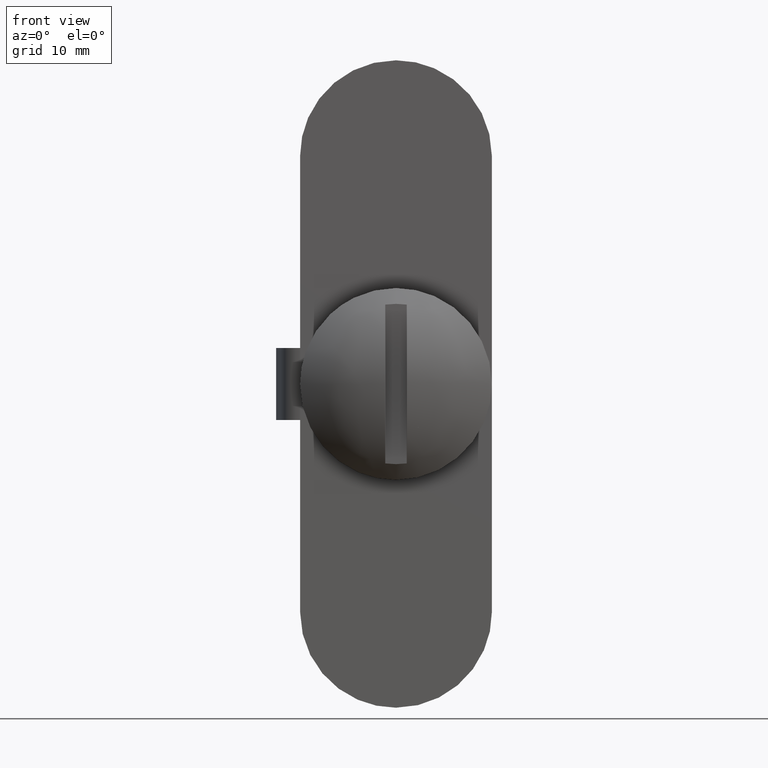
[diagram: clean part render]
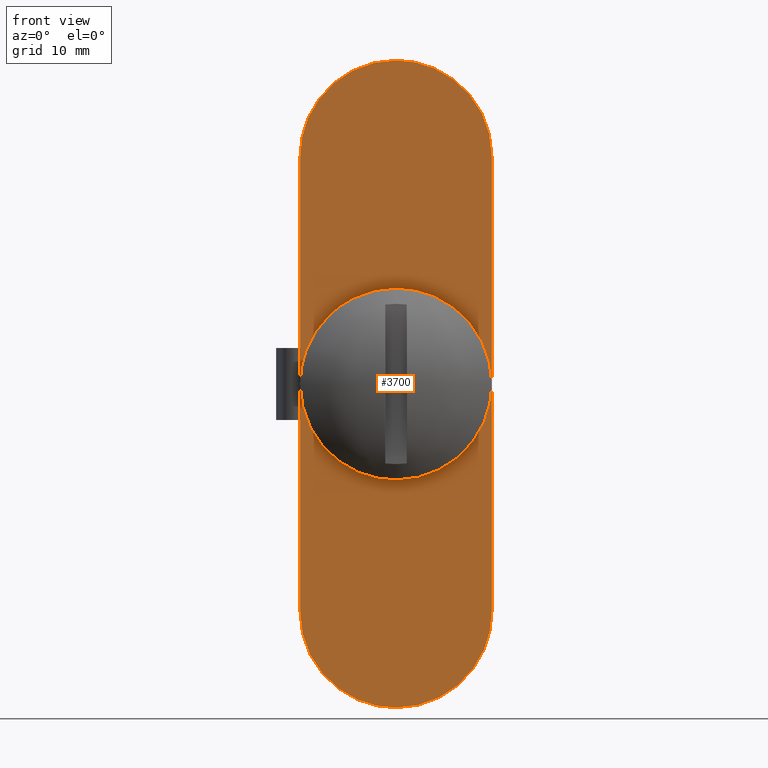
[diagram: same view with one face highlighted and labeled with its STEP entity id]
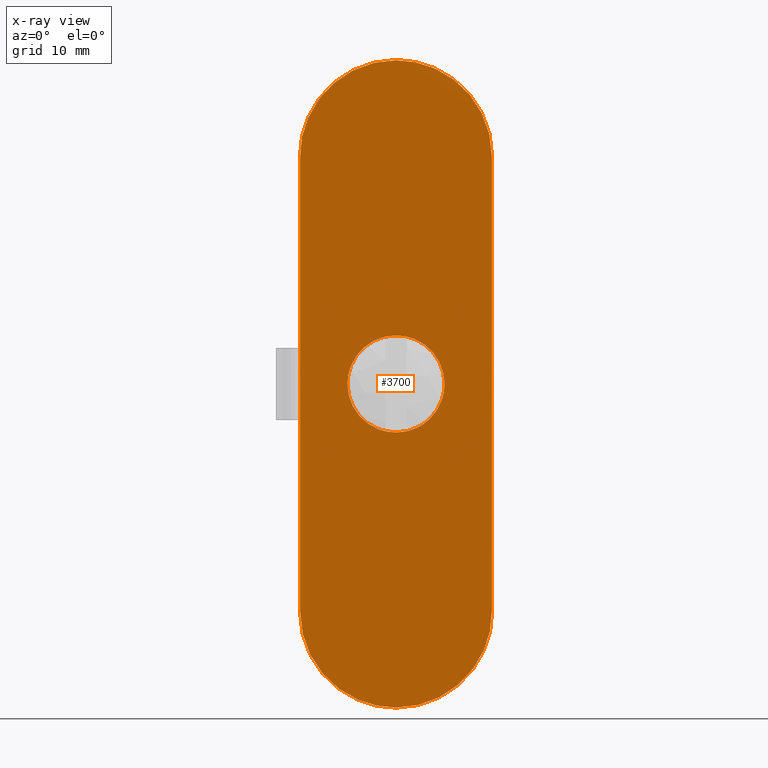
[diagram: x-ray of the same camera — body ghosted, the highlighted face saturated]
A machine part, front view. The second image highlights one B-rep face of the part: STEP entity #3700.
The next image is the same camera in x-ray: the body ghosted, the highlighted face saturated — about 0% of this face is hidden behind the body in this view.
In plain terms, the highlighted face is a freeform B-spline surface patch.
Its self-contained STEP definition (entity closure, byte-faithful):
#3223=CARTESIAN_POINT('',(3.092400469154631,-1.599991000001859,2.615255294156009));
#3224=VERTEX_POINT('',#3223);
#3225=CARTESIAN_POINT('',(0.0,-1.599990999999965,4.050000000000000));
#3226=VERTEX_POINT('',#3225);
#3227=CARTESIAN_POINT('',(3.092400469154631,-1.599991000001859,2.615255294156009));
#3228=CARTESIAN_POINT('',(2.820376977691375,-1.599991000001693,2.937277410438692));
#3229=CARTESIAN_POINT('',(2.300836514893741,-1.599991000001375,3.385744414825498));
#3230=CARTESIAN_POINT('',(1.493138806899813,-1.599991000000878,3.787413040616861));
#3231=CARTESIAN_POINT('',(0.769694009481361,-1.599991000000438,3.999427392969075));
#3232=CARTESIAN_POINT('',(0.274895964038809,-1.599991000000127,4.050034765647252));
#3233=CARTESIAN_POINT('',(0.0,-1.599990999999965,4.050000000000000));
#3234=B_SPLINE_CURVE_WITH_KNOTS('',3,(#3227,#3228,#3229,#3230,#3231,#3232,#3233),.UNSPECIFIED.,.F.,.U.,(4,1,1,1,4),(0.000000015928992,1.264529401427014,2.034226246631516,2.693985453096188,3.518673681886411),.UNSPECIFIED.);
#3235=EDGE_CURVE('',#3224,#3226,#3234,.T.);
#3237=CARTESIAN_POINT('',(-4.049999999999974,-1.599990999999965,-0.000000458331463));
#3238=VERTEX_POINT('',#3237);
#3239=CARTESIAN_POINT('',(0.0,-1.599990999999965,4.050000000000000));
#3240=CARTESIAN_POINT('',(-0.381054484313349,-1.599990999999965,4.050140602619687));
#3241=CARTESIAN_POINT('',(-1.010515882282830,-1.599990999999965,3.960478360670183));
#3242=CARTESIAN_POINT('',(-1.800263474168595,-1.599990999999965,3.650198816271311));
#3243=CARTESIAN_POINT('',(-2.453598175635486,-1.599990999999961,3.253170430365296));
#3244=CARTESIAN_POINT('',(-3.046438682187678,-1.599990999999966,2.715894467325104));
#3245=CARTESIAN_POINT('',(-3.501115867815219,-1.599990999999963,2.078566816770383));
#3246=CARTESIAN_POINT('',(-3.827842104405860,-1.599990999999986,1.387769674100269));
#3247=CARTESIAN_POINT('',(-4.010294287966048,-1.599990999999902,0.712385562720853));
#3248=CARTESIAN_POINT('',(-4.050008687073341,-1.599991000000036,0.215367743600465));
#3249=CARTESIAN_POINT('',(-4.049999999999974,-1.599990999999965,-0.000000458331463));
#3250=B_SPLINE_CURVE_WITH_KNOTS('',3,(#3239,#3240,#3241,#3242,#3243,#3244,#3245,#3246,#3247,#3248,#3249),.UNSPECIFIED.,.F.,.U.,(4,1,1,1,1,1,1,1,4),(0.000000055227183,1.143122650493126,1.888650764688554,2.534773102149365,3.429381718679102,4.274308838590464,4.870726688445481,5.715652830963844,6.361765298970928),.UNSPECIFIED.);
#3251=EDGE_CURVE('',#3226,#3238,#3250,.T.);
#3253=CARTESIAN_POINT('',(0.0,-1.599990999999965,-4.050000000000000));
#3254=VERTEX_POINT('',#3253);
#3255=CARTESIAN_POINT('',(-4.049999999999974,-1.599990999999965,-0.000000458331463));
#3256=CARTESIAN_POINT('',(-4.050201243229171,-1.599990999999974,-0.414195219986316));
#3257=CARTESIAN_POINT('',(-3.937173920950953,-1.599990999999945,-1.143030930930646));
#3258=CARTESIAN_POINT('',(-3.560234583896198,-1.599990999999985,-1.979403110114198));
#3259=CARTESIAN_POINT('',(-3.143165495486218,-1.599990999999945,-2.579282978451702));
#3260=CARTESIAN_POINT('',(-2.661637303840499,-1.599990999999951,-3.085117777227258));
#3261=CARTESIAN_POINT('',(-2.078568684010875,-1.599991000000042,-3.501118182822238));
#3262=CARTESIAN_POINT('',(-1.432818437939988,-1.599990999999898,-3.806521129870342));
#3263=CARTESIAN_POINT('',(-0.762065598154865,-1.599990999999986,-4.001024033879598));
#3264=CARTESIAN_POINT('',(-0.265070882309666,-1.599990999999965,-4.050037229062435));
#3265=CARTESIAN_POINT('',(0.0,-1.599990999999965,-4.050000000000000));
#3266=B_SPLINE_CURVE_WITH_KNOTS('',3,(#3255,#3256,#3257,#3258,#3259,#3260,#3261,#3262,#3263,#3264,#3265),.UNSPECIFIED.,.F.,.U.,(4,1,1,1,1,1,1,1,4),(0.000000055387317,1.242531855871150,2.186866573110421,2.733573998402191,3.429381440726923,4.274308491726776,4.870726292973097,5.566556277256678,6.361764782321302),.UNSPECIFIED.);
#3267=EDGE_CURVE('',#3238,#3254,#3266,.T.);
#3269=CARTESIAN_POINT('',(2.787835918983155,-1.599990999997954,-2.937766151683632));
#3270=VERTEX_POINT('',#3269);
#3271=CARTESIAN_POINT('',(0.0,-1.599990999999965,-4.050000000000000));
#3272=CARTESIAN_POINT('',(0.272254321299276,-1.599990999999766,-4.050041422317981));
#3273=CARTESIAN_POINT('',(0.736667426263353,-1.599990999999435,-4.002980208834696));
#3274=CARTESIAN_POINT('',(1.416976343417097,-1.599990999998945,-3.812625169096760));
#3275=CARTESIAN_POINT('',(2.102919850558829,-1.599990999998443,-3.495560729496080));
#3276=CARTESIAN_POINT('',(2.555550301668501,-1.599990999998125,-3.158303154968257));
#3277=CARTESIAN_POINT('',(2.787835918983155,-1.599990999997954,-2.937766151683632));
#3278=B_SPLINE_CURVE_WITH_KNOTS('',3,(#3271,#3272,#3273,#3274,#3275,#3276,#3277),.UNSPECIFIED.,.F.,.U.,(4,1,1,1,4),(0.000000013875821,0.816757953015864,1.393299582913002,2.113960479790959,3.074851748193050),.UNSPECIFIED.);
#3279=EDGE_CURVE('',#3254,#3270,#3278,.T.);
#3367=CARTESIAN_POINT('',(4.049999999999973,-1.599990999999965,0.000000458331472));
#3368=VERTEX_POINT('',#3367);
#3369=CARTESIAN_POINT('',(4.049999999999973,-1.599990999999965,0.000000458331472));
#3370=CARTESIAN_POINT('',(4.050147345321640,-1.599991000000244,0.385021680494588));
#3371=CARTESIAN_POINT('',(3.962745837365865,-1.599991000000690,0.992037114315919));
#3372=CARTESIAN_POINT('',(3.621113157875833,-1.599991000001318,1.879469827514581));
#3373=CARTESIAN_POINT('',(3.312407704599532,-1.599991000001674,2.355261533687516));
#3374=CARTESIAN_POINT('',(3.092400469154631,-1.599991000001859,2.615255294156009));
#3375=B_SPLINE_CURVE_WITH_KNOTS('',3,(#3369,#3370,#3371,#3372,#3373,#3374),.UNSPECIFIED.,.F.,.U.,(4,1,1,4),(0.000000012530482,1.155009485333611,1.821353007942206,2.843092339355573),.UNSPECIFIED.);
#3376=EDGE_CURVE('',#3368,#3224,#3375,.T.);
#3401=CARTESIAN_POINT('',(2.787835918983155,-1.599990999997954,-2.937766151683632));
#3402=CARTESIAN_POINT('',(3.011403582672485,-1.599990999998101,-2.725693667472977));
#3403=CARTESIAN_POINT('',(3.398666969683116,-1.599990999998413,-2.263382151183006));
#3404=CARTESIAN_POINT('',(3.761295607858146,-1.599990999998897,-1.559207491373230));
#3405=CARTESIAN_POINT('',(3.993044856083322,-1.599990999999419,-0.804578728298740));
#3406=CARTESIAN_POINT('',(4.050066773174976,-1.599990999999753,-0.308152803475064));
#3407=CARTESIAN_POINT('',(4.049999999999973,-1.599990999999965,0.000000458331472));
#3408=B_SPLINE_CURVE_WITH_KNOTS('',3,(#3401,#3402,#3403,#3404,#3405,#3406,#3407),.UNSPECIFIED.,.F.,.U.,(4,1,1,1,4),(0.000000016472933,0.924444961002549,1.797521033919546,2.362468849384825,3.286913793914511),.UNSPECIFIED.);
#3409=EDGE_CURVE('',#3270,#3368,#3408,.T.);
#3428=CARTESIAN_POINT('',(-8.0,-1.600004125000085,3.0));
#3429=VERTEX_POINT('',#3428);
#3492=CARTESIAN_POINT('',(-8.0,-1.600004125000085,-3.0));
#3493=VERTEX_POINT('',#3492);
#3535=CARTESIAN_POINT('',(-8.0,-1.600004125000085,3.0));
#3536=CARTESIAN_POINT('',(-8.0,-1.600004125000085,-3.0));
#3537=QUASI_UNIFORM_CURVE('',1,(#3535,#3536),.UNSPECIFIED.,.F.,.U.);
#3538=EDGE_CURVE('',#3429,#3493,#3537,.T.);
#3591=CARTESIAN_POINT('',(-8.799199968988896,-1.599991000000000,29.697299895337490));
#3592=CARTESIAN_POINT('',(8.799200398142338,-1.599991000000000,29.697299895337490));
#3593=CARTESIAN_POINT('',(-8.799199968988896,-1.599991000000000,-29.697301343730359));
#3594=CARTESIAN_POINT('',(8.799200398142338,-1.599991000000000,-29.697301343730359));
#3595=B_SPLINE_SURFACE_WITH_KNOTS('',1,1,((#3591,#3593),(#3592,#3594)),.UNSPECIFIED.,.F.,.F.,.U.,(2,2),(2,2),(0.0,17.598400367131230),(0.0,59.394601239067860),.UNSPECIFIED.);
#3596=CARTESIAN_POINT('',(8.0,-1.599990999999965,19.0));
#3597=VERTEX_POINT('',#3596);
#3598=CARTESIAN_POINT('',(8.0,-1.599990999999965,-19.0));
#3599=VERTEX_POINT('',#3598);
#3600=CARTESIAN_POINT('',(8.0,-1.599990999999965,19.0));
#3601=CARTESIAN_POINT('',(8.0,-1.599990999999965,-19.0));
#3602=QUASI_UNIFORM_CURVE('',1,(#3600,#3601),.UNSPECIFIED.,.F.,.U.);
#3603=EDGE_CURVE('',#3597,#3599,#3602,.T.);
#3604=ORIENTED_EDGE('',*,*,#3603,.F.);
#3605=CARTESIAN_POINT('',(-0.000000671420413,-1.599990999999965,26.999999999999979));
#3606=VERTEX_POINT('',#3605);
#3607=CARTESIAN_POINT('',(8.0,-1.599990999999965,19.0));
#3608=CARTESIAN_POINT('',(8.000055658176320,-1.599990999999967,19.523601726682081));
#3609=CARTESIAN_POINT('',(7.900058436080794,-1.599990999999963,20.538051594862448));
#3610=CARTESIAN_POINT('',(7.521515978707759,-1.599990999999972,21.814067541485230));
#3611=CARTESIAN_POINT('',(6.957567482298716,-1.599990999999964,23.015969337826039));
#3612=CARTESIAN_POINT('',(6.257013327467415,-1.599990999999957,24.050641715864302));
#3613=CARTESIAN_POINT('',(5.308734373837774,-1.599990999999986,25.028422618844541));
#3614=CARTESIAN_POINT('',(4.324430070476393,-1.599990999999913,25.767838439556130));
#3615=CARTESIAN_POINT('',(3.210262216620889,-1.599991000000043,26.363364711971709));
#3616=CARTESIAN_POINT('',(1.783427558124979,-1.599990999999904,26.859192141998982));
#3617=CARTESIAN_POINT('',(0.670875504879247,-1.599990999999988,27.000181070990550));
#3618=CARTESIAN_POINT('',(-0.000000671420413,-1.599990999999965,26.999999999999979));
#3619=B_SPLINE_CURVE_WITH_KNOTS('',3,(#3607,#3608,#3609,#3610,#3611,#3612,#3613,#3614,#3615,#3616,#3617,#3618),.UNSPECIFIED.,.F.,.U.,(4,1,1,1,1,1,1,1,1,4),(0.000000037951718,1.570796537303250,3.043422620387393,3.976088266977515,5.546892700908940,6.774049362718611,8.050335254018872,9.228443648545097,10.553814228072291,12.566390705773090),.UNSPECIFIED.);
#3620=EDGE_CURVE('',#3597,#3606,#3619,.T.);
#3621=ORIENTED_EDGE('',*,*,#3620,.T.);
#3622=CARTESIAN_POINT('',(-8.0,-1.599990999999965,19.0));
#3623=VERTEX_POINT('',#3622);
#3624=CARTESIAN_POINT('',(-0.000000671420413,-1.599990999999965,26.999999999999979));
#3625=CARTESIAN_POINT('',(-0.409058530334494,-1.599990999999967,27.000021492303130));
#3626=CARTESIAN_POINT('',(-1.128997142312720,-1.599990999999961,26.944659344639899));
#3627=CARTESIAN_POINT('',(-2.218660525742400,-1.599990999999967,26.710486490052840));
#3628=CARTESIAN_POINT('',(-3.145530879441106,-1.599990999999970,26.378850672017400));
#3629=CARTESIAN_POINT('',(-4.095356863511993,-1.599990999999963,25.897084283627049));
#3630=CARTESIAN_POINT('',(-4.883322783046102,-1.599990999999969,25.363563316041908));
#3631=CARTESIAN_POINT('',(-5.646387689577706,-1.599990999999961,24.692976438119072));
#3632=CARTESIAN_POINT('',(-6.249944118269243,-1.599990999999970,24.022936347426349));
#3633=CARTESIAN_POINT('',(-6.856391194409314,-1.599990999999968,23.167463483428559));
#3634=CARTESIAN_POINT('',(-7.353571376795534,-1.599990999999963,22.223432441611699));
#3635=CARTESIAN_POINT('',(-7.722798476186717,-1.599990999999968,21.171135533468910));
#3636=CARTESIAN_POINT('',(-7.946885246248465,-1.599990999999961,20.112638819968112));
#3637=CARTESIAN_POINT('',(-8.000017664104293,-1.599990999999973,19.392695676937169));
#3638=CARTESIAN_POINT('',(-8.0,-1.599990999999965,19.0));
#3639=B_SPLINE_CURVE_WITH_KNOTS('',3,(#3624,#3625,#3626,#3627,#3628,#3629,#3630,#3631,#3632,#3633,#3634,#3635,#3636,#3637,#3638),.UNSPECIFIED.,.F.,.U.,(4,1,1,1,1,1,1,1,1,1,1,1,4),(0.000000038011205,1.227172697971893,2.159840542873159,3.337947909478849,4.172435515595490,5.350548260045036,6.185028635192336,7.215843494601299,8.050334768926938,9.326617916998785,10.406544262785321,11.388302338843920,12.566389948924650),.UNSPECIFIED.);
#3640=EDGE_CURVE('',#3606,#3623,#3639,.T.);
#3641=ORIENTED_EDGE('',*,*,#3640,.T.);
#3642=CARTESIAN_POINT('',(-8.0,-1.600004125000085,3.0));
#3643=CARTESIAN_POINT('',(-8.0,-1.599990999999965,19.0));
#3644=QUASI_UNIFORM_CURVE('',1,(#3642,#3643),.UNSPECIFIED.,.F.,.U.);
#3645=EDGE_CURVE('',#3429,#3623,#3644,.T.);
#3646=ORIENTED_EDGE('',*,*,#3645,.F.);
#3647=ORIENTED_EDGE('',*,*,#3538,.T.);
#3648=CARTESIAN_POINT('',(-8.0,-1.599990999999965,-19.0));
#3649=VERTEX_POINT('',#3648);
#3650=CARTESIAN_POINT('',(-8.0,-1.599990999999965,-19.0));
#3651=CARTESIAN_POINT('',(-8.0,-1.600004125000085,-3.0));
#3652=QUASI_UNIFORM_CURVE('',1,(#3650,#3651),.UNSPECIFIED.,.F.,.U.);
#3653=EDGE_CURVE('',#3649,#3493,#3652,.T.);
#3654=ORIENTED_EDGE('',*,*,#3653,.F.);
#3655=CARTESIAN_POINT('',(0.000000671420413,-1.599990999999965,-26.999999999999979));
#3656=VERTEX_POINT('',#3655);
#3657=CARTESIAN_POINT('',(-8.0,-1.599990999999965,-19.0));
#3658=CARTESIAN_POINT('',(-8.000055658176320,-1.599990999999967,-19.523601726682081));
#3659=CARTESIAN_POINT('',(-7.900058436080794,-1.599990999999963,-20.538051594862448));
#3660=CARTESIAN_POINT('',(-7.521515978707759,-1.599990999999972,-21.814067541485230));
#3661=CARTESIAN_POINT('',(-6.957567482298716,-1.599990999999964,-23.015969337826039));
#3662=CARTESIAN_POINT('',(-6.257013327467415,-1.599990999999957,-24.050641715864302));
#3663=CARTESIAN_POINT('',(-5.308734373837774,-1.599990999999986,-25.028422618844541));
#3664=CARTESIAN_POINT('',(-4.324430070476393,-1.599990999999913,-25.767838439556130));
#3665=CARTESIAN_POINT('',(-3.210262216620889,-1.599991000000043,-26.363364711971709));
#3666=CARTESIAN_POINT('',(-1.783427558124979,-1.599990999999904,-26.859192141998982));
#3667=CARTESIAN_POINT('',(-0.670875504879247,-1.599990999999988,-27.000181070990550));
#3668=CARTESIAN_POINT('',(0.000000671420413,-1.599990999999965,-26.999999999999979));
#3669=B_SPLINE_CURVE_WITH_KNOTS('',3,(#3657,#3658,#3659,#3660,#3661,#3662,#3663,#3664,#3665,#3666,#3667,#3668),.UNSPECIFIED.,.F.,.U.,(4,1,1,1,1,1,1,1,1,4),(0.000000037951718,1.570796537303250,3.043422620387393,3.976088266977515,5.546892700908940,6.774049362718611,8.050335254018872,9.228443648545097,10.553814228072291,12.566390705773090),.UNSPECIFIED.);
#3670=EDGE_CURVE('',#3649,#3656,#3669,.T.);
#3671=ORIENTED_EDGE('',*,*,#3670,.T.);
#3672=CARTESIAN_POINT('',(0.000000671420413,-1.599990999999965,-26.999999999999979));
#3673=CARTESIAN_POINT('',(0.409058530334494,-1.599990999999967,-27.000021492303130));
#3674=CARTESIAN_POINT('',(1.128997142312720,-1.599990999999961,-26.944659344639899));
#3675=CARTESIAN_POINT('',(2.218660525742400,-1.599990999999967,-26.710486490052840));
#3676=CARTESIAN_POINT('',(3.145530879441106,-1.599990999999970,-26.378850672017400));
#3677=CARTESIAN_POINT('',(4.095356863511993,-1.599990999999963,-25.897084283627049));
#3678=CARTESIAN_POINT('',(4.883322783046102,-1.599990999999969,-25.363563316041908));
#3679=CARTESIAN_POINT('',(5.646387689577706,-1.599990999999961,-24.692976438119072));
#3680=CARTESIAN_POINT('',(6.249944118269243,-1.599990999999970,-24.022936347426349));
#3681=CARTESIAN_POINT('',(6.856391194409314,-1.599990999999968,-23.167463483428559));
#3682=CARTESIAN_POINT('',(7.353571376795534,-1.599990999999963,-22.223432441611699));
#3683=CARTESIAN_POINT('',(7.722798476186717,-1.599990999999968,-21.171135533468910));
#3684=CARTESIAN_POINT('',(7.946885246248465,-1.599990999999961,-20.112638819968112));
#3685=CARTESIAN_POINT('',(8.000017664104293,-1.599990999999973,-19.392695676937169));
#3686=CARTESIAN_POINT('',(8.0,-1.599990999999965,-19.0));
#3687=B_SPLINE_CURVE_WITH_KNOTS('',3,(#3672,#3673,#3674,#3675,#3676,#3677,#3678,#3679,#3680,#3681,#3682,#3683,#3684,#3685,#3686),.UNSPECIFIED.,.F.,.U.,(4,1,1,1,1,1,1,1,1,1,1,1,4),(0.000000038011205,1.227172697971893,2.159840542873159,3.337947909478849,4.172435515595490,5.350548260045036,6.185028635192336,7.215843494601299,8.050334768926938,9.326617916998785,10.406544262785321,11.388302338843920,12.566389948924650),.UNSPECIFIED.);
#3688=EDGE_CURVE('',#3656,#3599,#3687,.T.);
#3689=ORIENTED_EDGE('',*,*,#3688,.T.);
#3690=EDGE_LOOP('',(#3604,#3621,#3641,#3646,#3647,#3654,#3671,#3689));
#3691=FACE_OUTER_BOUND('',#3690,.T.);
#3692=ORIENTED_EDGE('',*,*,#3251,.F.);
#3693=ORIENTED_EDGE('',*,*,#3235,.F.);
#3694=ORIENTED_EDGE('',*,*,#3376,.F.);
#3695=ORIENTED_EDGE('',*,*,#3409,.F.);
#3696=ORIENTED_EDGE('',*,*,#3279,.F.);
#3697=ORIENTED_EDGE('',*,*,#3267,.F.);
#3698=EDGE_LOOP('',(#3692,#3693,#3694,#3695,#3696,#3697));
#3699=FACE_BOUND('',#3698,.T.);
#3700=ADVANCED_FACE('',(#3691,#3699),#3595,.F.);